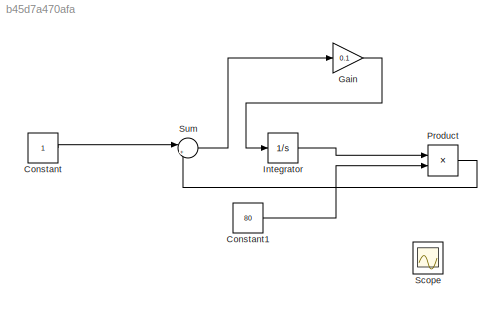
MODEL slx_b45d7a470afa
KIND model
CONFIG AbsTol = auto
CONFIG EnableMultiTasking = off
CONFIG FixedStep = auto
CONFIG MaxStep = auto
CONFIG MinStep = auto
CONFIG RelTol = 1e-3
CONFIG SampleTimeConstraint = Unconstrained
CONFIG SolverName = VariableStepAuto
CONFIG StartTime = 0.0
CONFIG StopTime = 10.0
BLOCK [Constant] Constant
BLOCK [Constant] Constant1
  Value = 80
BLOCK [Gain] Gain
  Gain = 0.1
BLOCK [Integrator] Integrator
BLOCK [Product] Product
BLOCK [Scope] Scope
  Floating = off
  GraphicalSettings = {"GraphicalSettings":{"LegacySettings":true,"Style":{"Style":{"PlotType":"Auto"}}}}
  NumInputPorts = 1
  WasSavedAsWebScope = on
BLOCK [Sum] Sum
  Inputs = |+-
LINE Constant1:1 -> Product:2
LINE Constant:1 -> Sum:1
LINE Gain:1 -> Integrator:1
LINE Integrator:1 -> Product:1
LINE Product:1 -> Sum:2
LINE Sum:1 -> Gain:1
